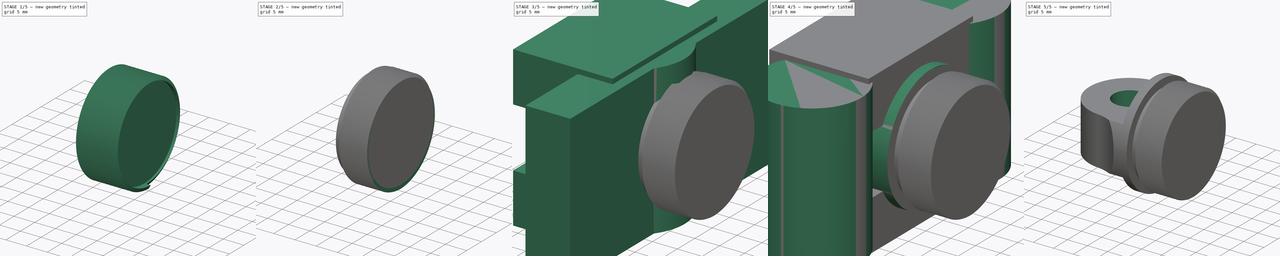
[diagram: build sequence overview — one tinted view per stage of 5, left to right]
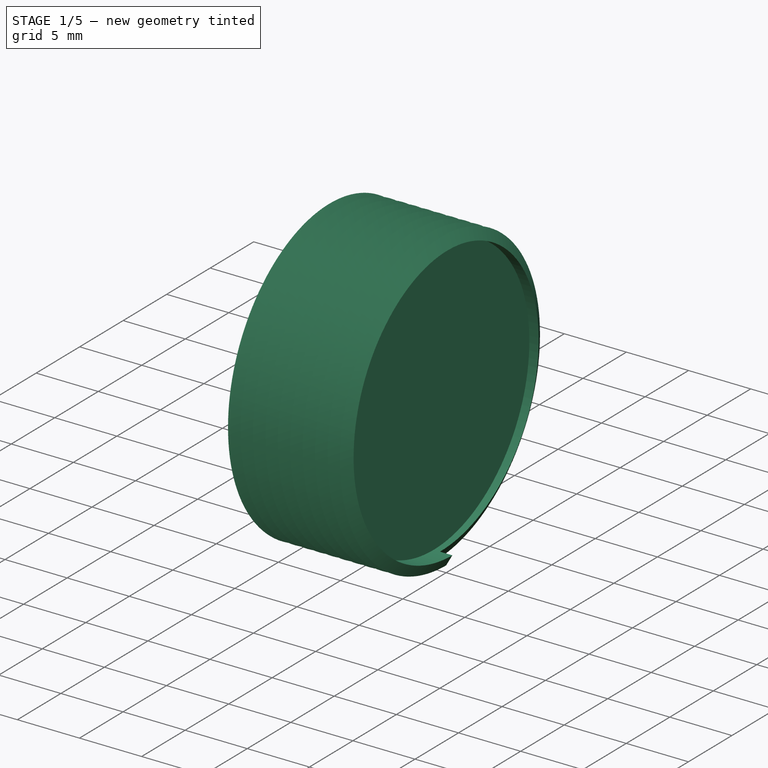
[diagram: stage 1 of 5 — iso view after this stage's code; geometry added in this stage tinted green]
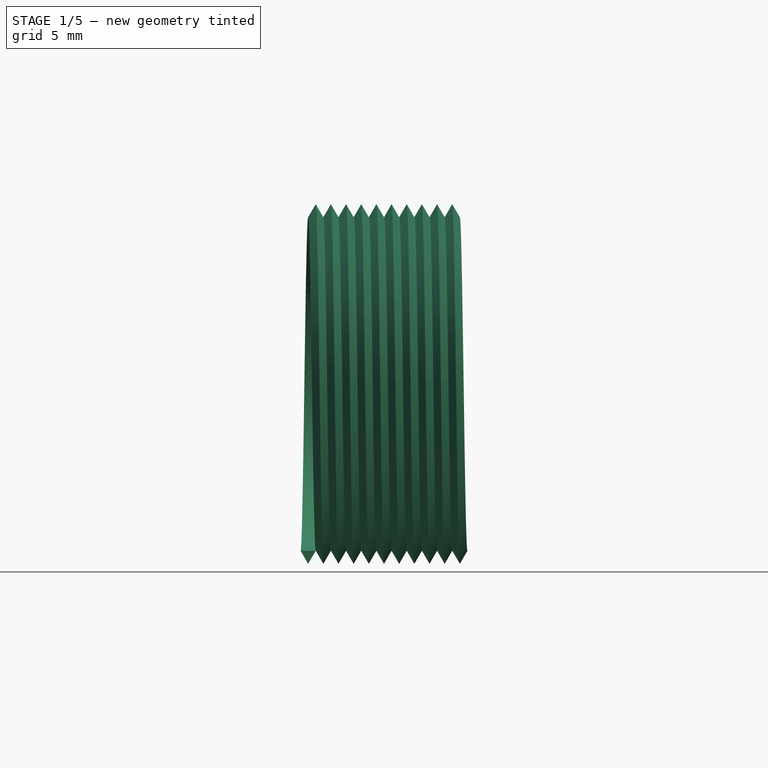
[diagram: stage 1 of 5 — front view after this stage's code; geometry added in this stage tinted green]
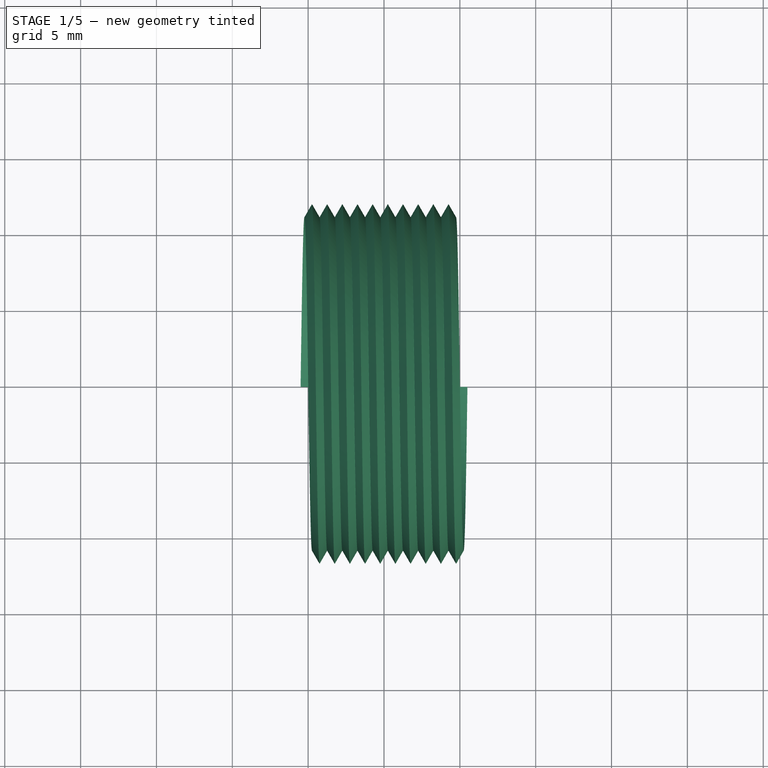
[diagram: stage 1 of 5 — top view after this stage's code; geometry added in this stage tinted green]
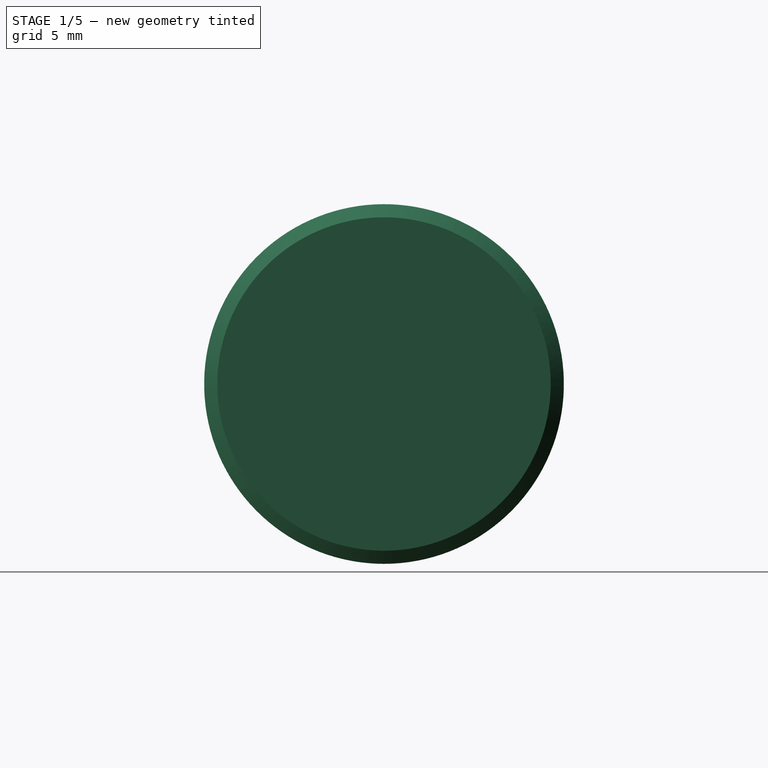
[diagram: stage 1 of 5 — right view after this stage's code; geometry added in this stage tinted green]
FCSTD DOCUMENT  (FreeCAD 0.17R13541 (Git))
Label: ERG-T-03-BC-01
License: All rights reserved
LicenseURL: http://en.wikipedia.org/wiki/All_rights_reserved
objects: Drawing::FeatureViewPython×20, Part::Cylinder×11, Part::MultiFuse×6, Part::Cut×6, Part::Box×3, Drawing::FeatureViewPart×2, Sketcher::SketchObject×1, Part::Helix×1, Part::Sweep×1, Part::MultiCommon×1, Drawing::FeaturePage×1
note: 30 computed .brp shape members not serialized (recipe doc carries the construction recipe); baked Part::Feature solids carry a one-line shape summary decoded from their .brp

FEATURE [Part::Helix] Helix013
  Angle = 0
  AttacherType = Attacher::AttachEngine3D
  Height = 10
  LocalCoord = 0
  Pitch = 1
  Placement = pos=(157,0,0) rot=(0,1,0;1.5708rad)
  Radius = 9.5
  Style = 1
FEATURE [Part::Sweep] Sweep013
  Frenet = true
  Placement = pos=(-156.5,0,0) rot=(0,0,1;0rad)
  Sections = -> [Sketch019]
  Solid = true
  Spine = -> Helix013
  Transition = 1
FEATURE [Part::Cylinder] Cylinder
  Angle = 360
  AttacherType = Attacher::AttachEngine3D
  Height = 8
  Placement = pos=(1,0,0) rot=(0,1,0;1.5708rad)
  Radius = 11
FEATURE [Part::Cylinder] Cylinder039  label="Cylinder042"
  Angle = 360
  AttacherType = Attacher::AttachEngine3D
  Height = 1.5
  Placement = pos=(1,0,0) rot=(0,1,0;1.5708rad)
  Radius = 10.5
FEATURE [Part::Cylinder] Cylinder040  label="Cylinder043"
  Angle = 360
  AttacherType = Attacher::AttachEngine3D
  Height = 1.5
  Placement = pos=(1,0,0) rot=(0,1,0;1.5708rad)
  Radius = 13
FEATURE [Part::Cut] Cut020
  Base = -> Cylinder040
  Tool = -> Cylinder039
FEATURE [Part::Cut] Cut023
  Base = -> Cylinder
  Tool = -> Cut020
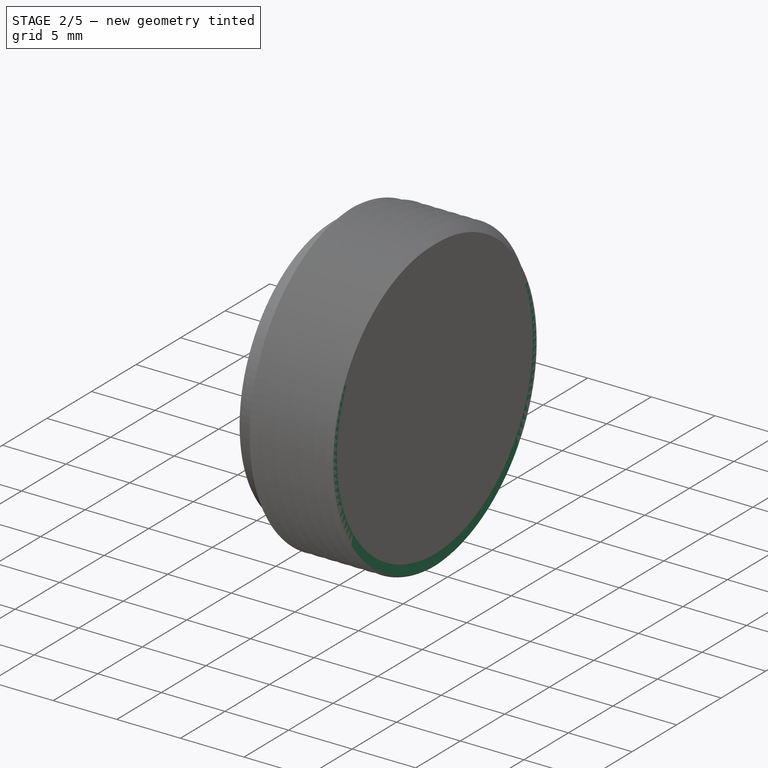
[diagram: stage 2 of 5 — iso view after this stage's code; geometry added in this stage tinted green]
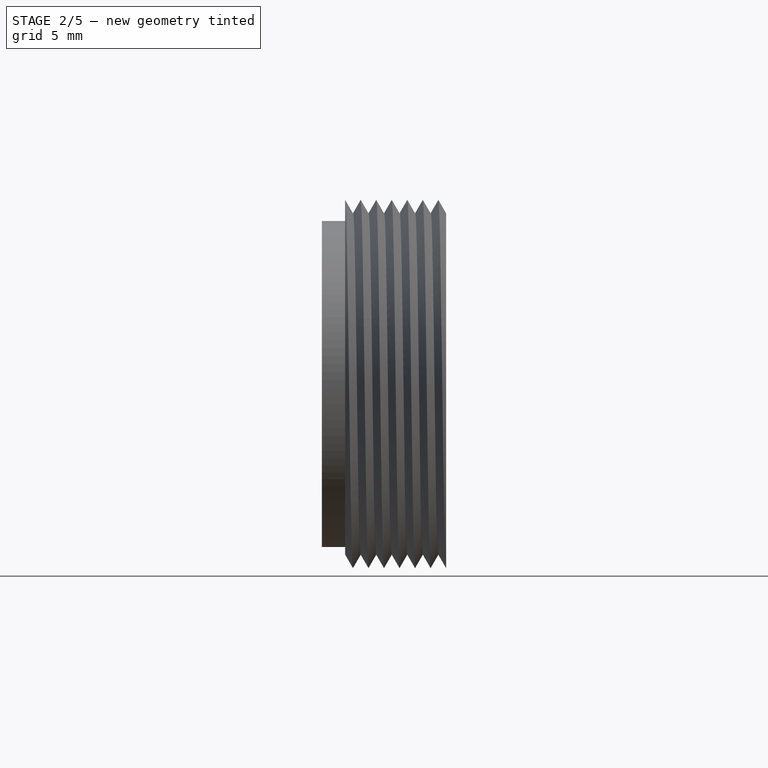
[diagram: stage 2 of 5 — front view after this stage's code; geometry added in this stage tinted green]
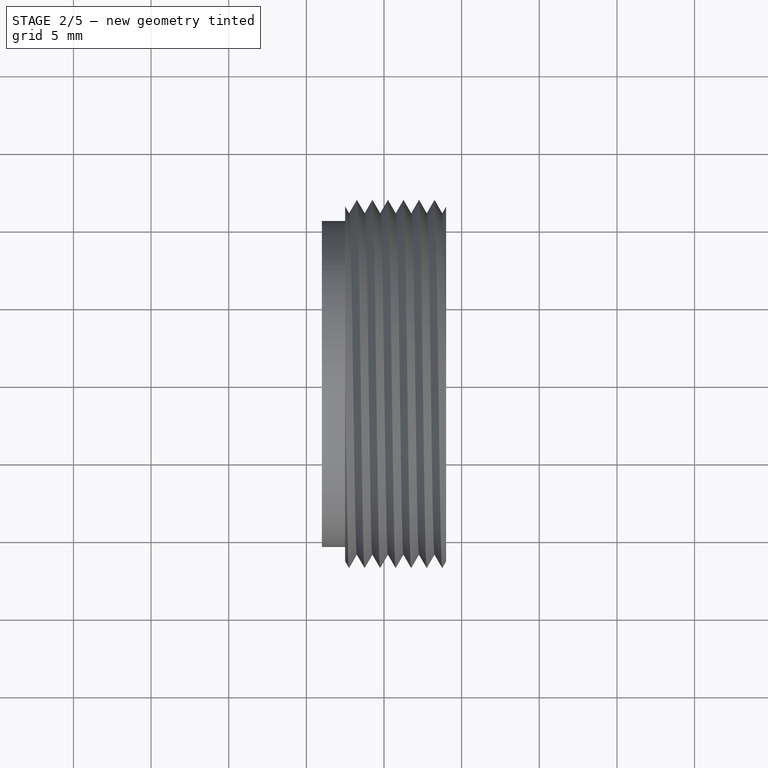
[diagram: stage 2 of 5 — top view after this stage's code; geometry added in this stage tinted green]
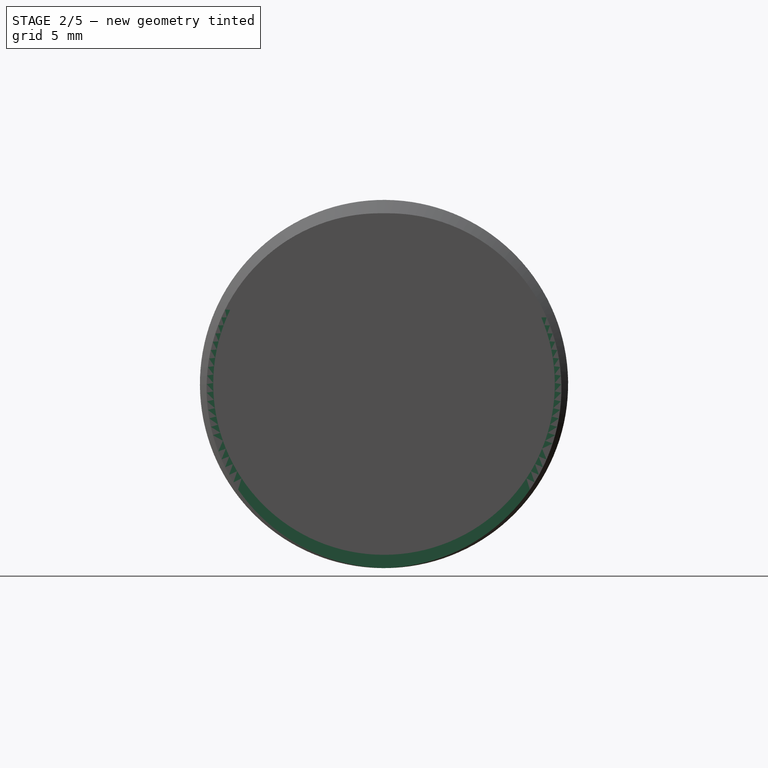
[diagram: stage 2 of 5 — right view after this stage's code; geometry added in this stage tinted green]
FEATURE [Sketcher::SketchObject] Sketch019  label="T018"
  Placement = pos=(156.5,0,-11.77) rot=(1,0,0;1.5708rad)
  sketch-geometry (3):
    g0: LineSegment StartX=-0.5 StartY=0.78015 StartZ=0 EndX=0.5 EndY=0.78015 EndZ=0
    g1: LineSegment StartX=-0.5 StartY=0.78015 StartZ=0 EndX=0 EndY=-0.0858752 EndZ=0
    g2: LineSegment StartX=0 StartY=-0.0858752 StartZ=0 EndX=0.5 EndY=0.78015 EndZ=0
  constraints (8):
    c: Horizontal(g0)
    c: DistanceX(g0,g0) = 1
    c: Coincident(g1,g0)
    c: Coincident(g2,g1)
    c: Coincident(g2,g0)
    c: Angle(g1,g0) = 1.0472
    c: Angle(g0,g2) = 1.0472
    c: Symmetric(g0,g0,g-2)
FEATURE [Part::Cylinder] Cylinder031  label="Cylinder034"
  Angle = 360
  AttacherType = Attacher::AttachEngine3D
  Height = 20
  Placement = pos=(9,0,0) rot=(0,1,0;1.5708rad)
  Radius = 13
FEATURE [Part::Cylinder] Cylinder032  label="Cylinder035"
  Angle = 360
  AttacherType = Attacher::AttachEngine3D
  Height = 3
  Placement = pos=(-0.5,0,0) rot=(0,1,0;1.5708rad)
  Radius = 13
FEATURE [Part::MultiFuse] Fusion008
  Shapes = -> [Cylinder031,Cylinder032]
FEATURE [Part::Cut] Cut022  label="thread"
  Base = -> Sweep013
  Tool = -> Fusion008
FEATURE [Part::MultiFuse] Fusion  label="body"
  Shapes = -> [Cut023,Cut022]
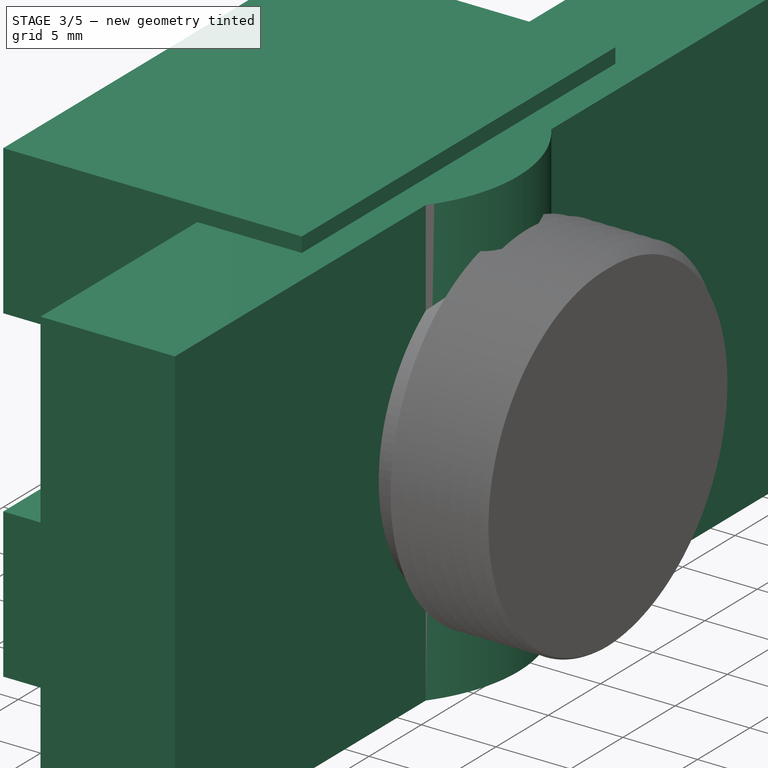
[diagram: stage 3 of 5 — iso view after this stage's code; geometry added in this stage tinted green]
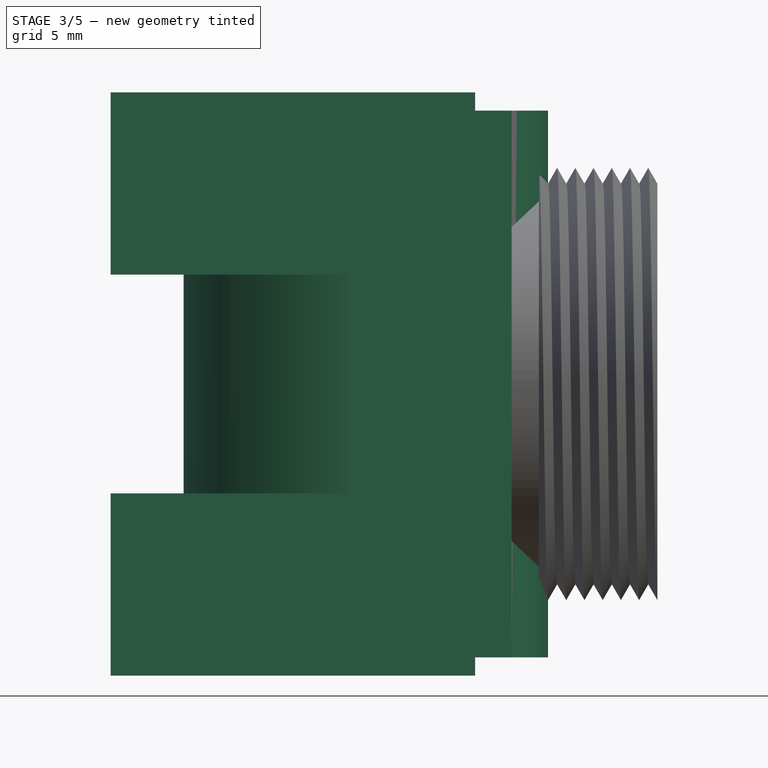
[diagram: stage 3 of 5 — front view after this stage's code; geometry added in this stage tinted green]
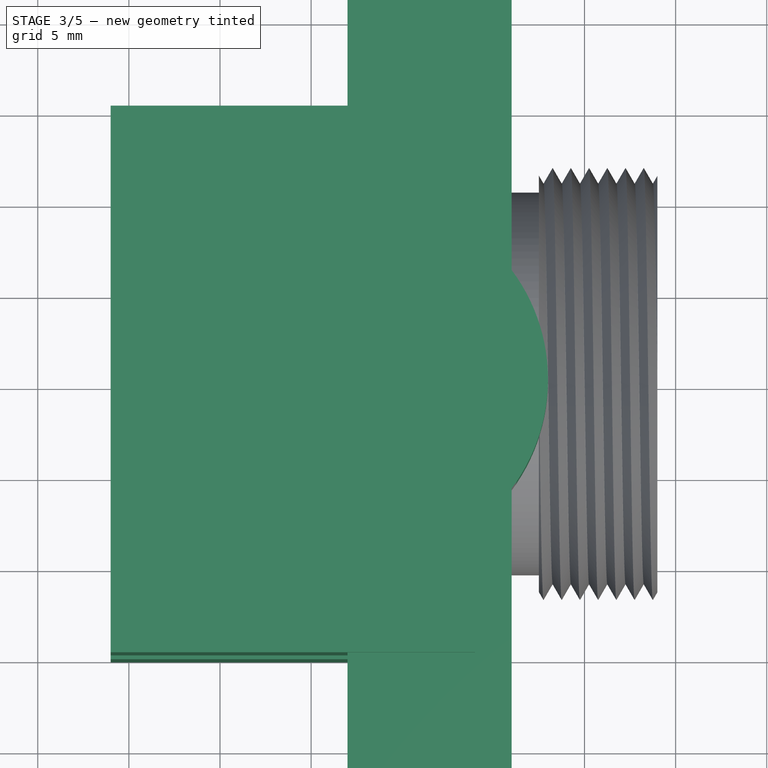
[diagram: stage 3 of 5 — top view after this stage's code; geometry added in this stage tinted green]
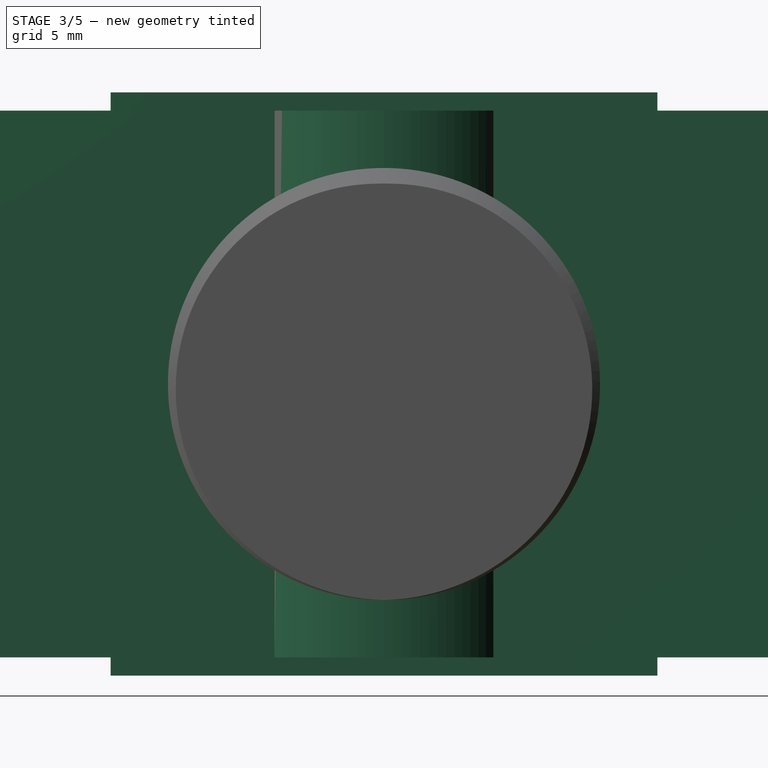
[diagram: stage 3 of 5 — right view after this stage's code; geometry added in this stage tinted green]
FEATURE [Part::Cylinder] Cylinder035  label="Cylinder038"
  Angle = 360
  AttacherType = Attacher::AttachEngine3D
  Height = 30
  Placement = pos=(-7,0,-15) rot=(0,0,1;0rad)
  Radius = 10
FEATURE [Part::Box] Box  label="Cube"
  AttacherType = Attacher::AttachEngine3D
  Height = 30
  Length = 9
  Placement = pos=(-8,-30,-15) rot=(0,0,1;0rad)
  Width = 60
FEATURE [Part::MultiFuse] Fusion011
  Shapes = -> [Cylinder035,Box]
FEATURE [Part::Box] Box001  label="Cube001"
  AttacherType = Attacher::AttachEngine3D
  Height = 10
  Length = 20
  Placement = pos=(-21,-15,6) rot=(0,0,1;0rad)
  Width = 30
FEATURE [Part::Box] Box002  label="Cube002"
  AttacherType = Attacher::AttachEngine3D
  Height = 10
  Length = 20
  Placement = pos=(-21,-15,-16) rot=(0,0,1;0rad)
  Width = 30
FEATURE [Part::MultiFuse] Fusion014
  Shapes = -> [Box002,Box001]
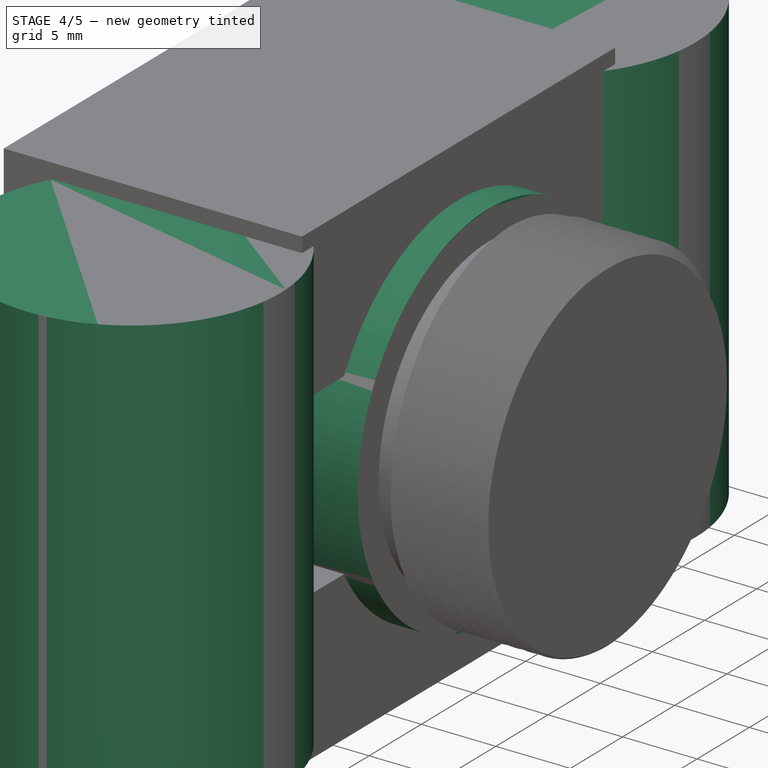
[diagram: stage 4 of 5 — iso view after this stage's code; geometry added in this stage tinted green]
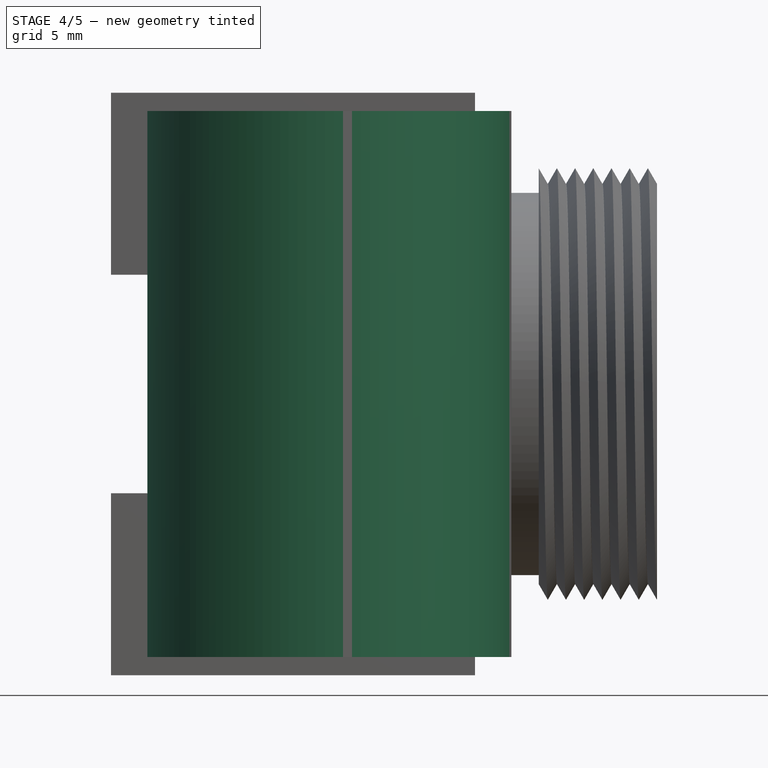
[diagram: stage 4 of 5 — front view after this stage's code; geometry added in this stage tinted green]
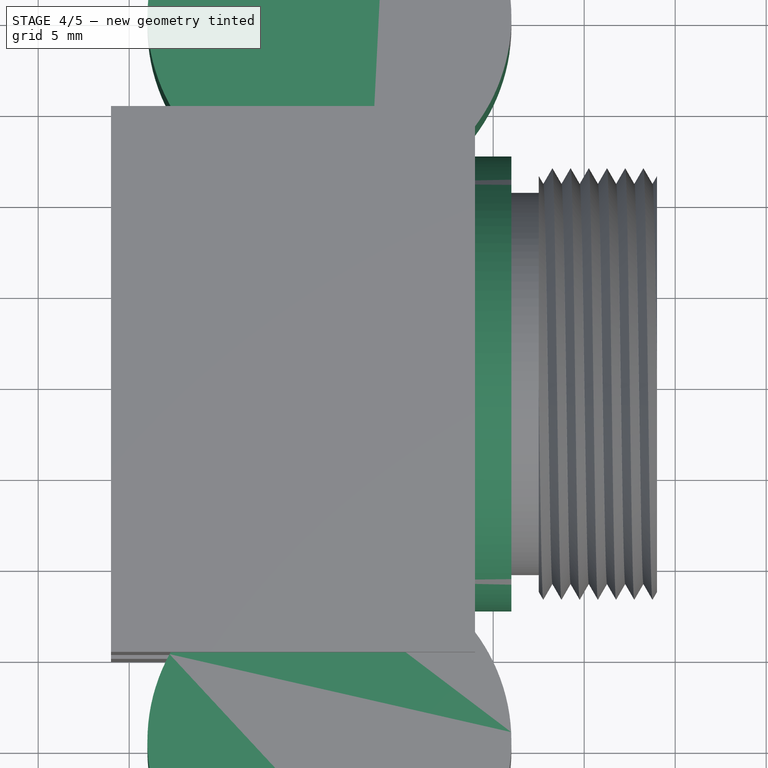
[diagram: stage 4 of 5 — top view after this stage's code; geometry added in this stage tinted green]
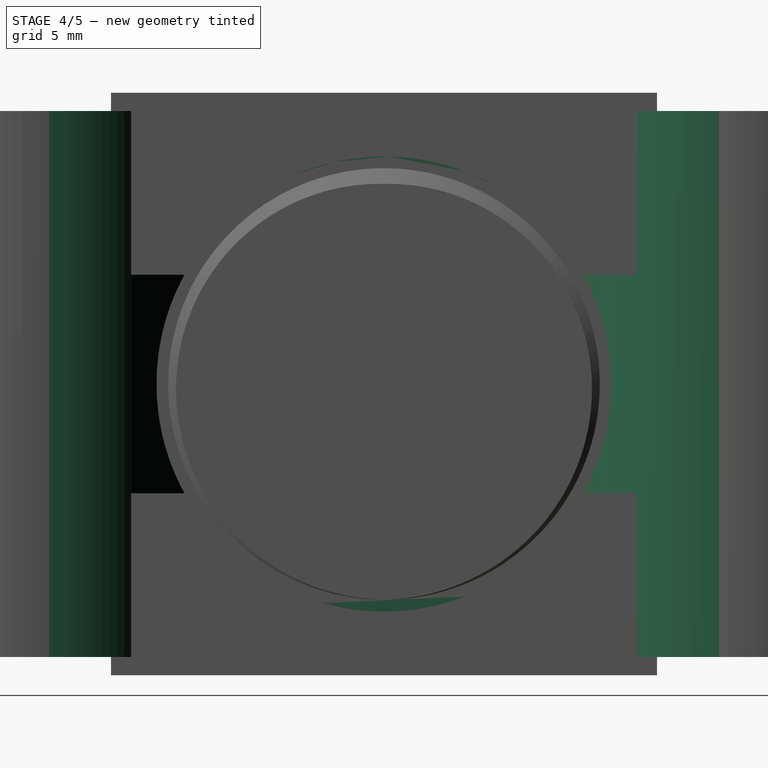
[diagram: stage 4 of 5 — right view after this stage's code; geometry added in this stage tinted green]
FEATURE [Part::Cylinder] Cylinder034  label="Cylinder037"
  Angle = 360
  AttacherType = Attacher::AttachEngine3D
  Height = 20
  Placement = pos=(-19,0,0) rot=(0,1,0;1.5708rad)
  Radius = 12.5
FEATURE [Part::Cylinder] Cylinder037  label="Cylinder040"
  Angle = 360
  AttacherType = Attacher::AttachEngine3D
  Height = 30
  Placement = pos=(-9,19.89,-15) rot=(0,0,1;0rad)
  Radius = 10
FEATURE [Part::Cylinder] Cylinder038  label="Cylinder041"
  Angle = 360
  AttacherType = Attacher::AttachEngine3D
  Height = 30
  Placement = pos=(-9,-19.89,-15) rot=(0,0,1;0rad)
  Radius = 10
FEATURE [Part::MultiFuse] Fusion010
  Shapes = -> [Cylinder037,Cylinder038]
FEATURE [Part::MultiCommon] Common
  Shapes = -> [Fusion011,Cylinder034]
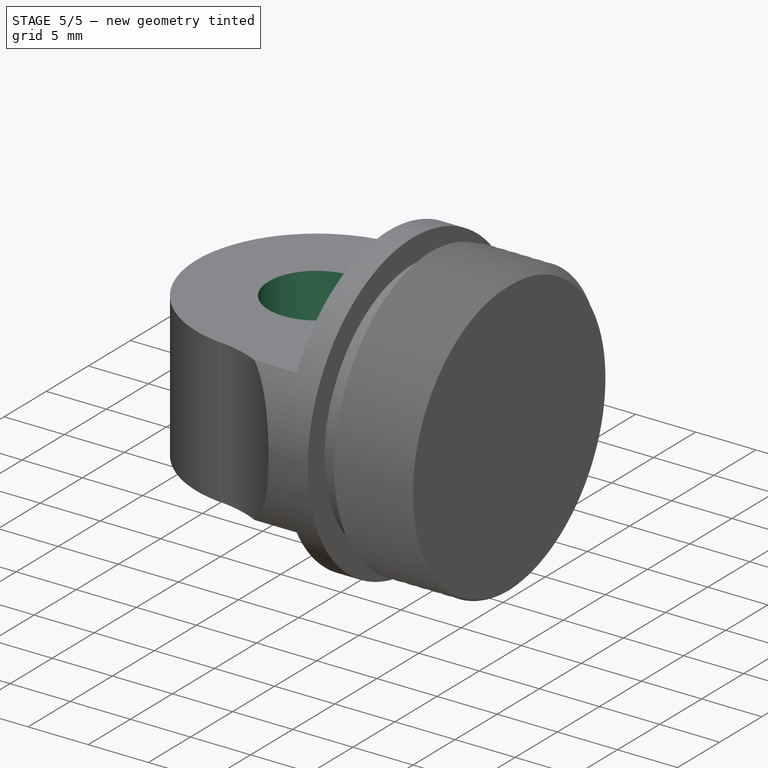
[diagram: stage 5 of 5 — iso view after this stage's code; geometry added in this stage tinted green]
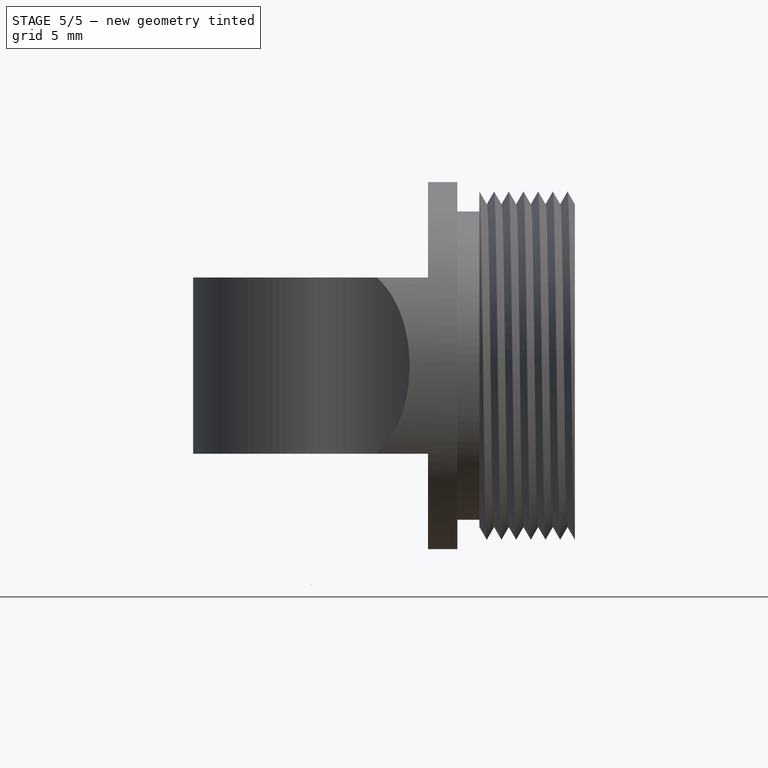
[diagram: stage 5 of 5 — front view after this stage's code; geometry added in this stage tinted green]
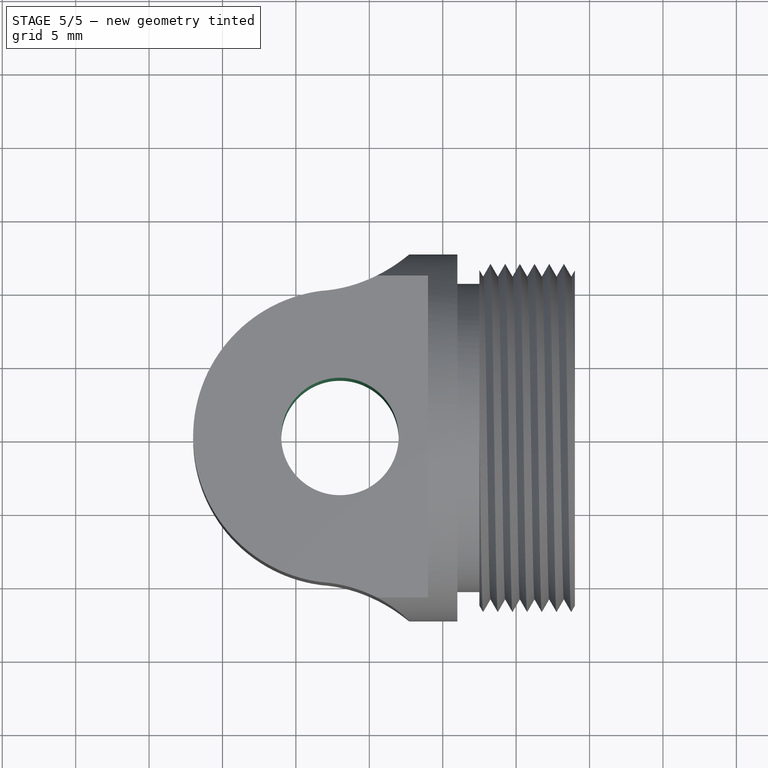
[diagram: stage 5 of 5 — top view after this stage's code; geometry added in this stage tinted green]
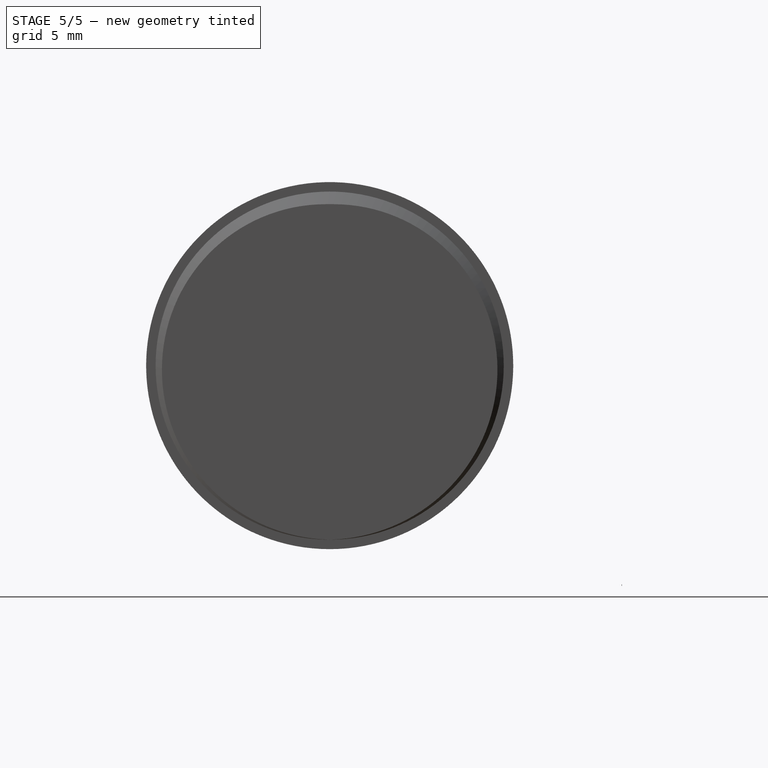
[diagram: stage 5 of 5 — right view after this stage's code; geometry added in this stage tinted green]
FEATURE [Part::Cylinder] Cylinder036  label="Cylinder039"
  Angle = 360
  AttacherType = Attacher::AttachEngine3D
  Height = 30
  Placement = pos=(-7,0,-15) rot=(0,0,1;0rad)
  Radius = 4
FEATURE [Part::Cut] Cut
  Base = -> Common
  Tool = -> Fusion010
FEATURE [Part::Cut] Cut019
  Base = -> Cut
  Tool = -> Cylinder036
FEATURE [Part::Cylinder] Cylinder041  label="center"
  Angle = 360
  AttacherType = Attacher::AttachEngine3D
  Height = 0.1
  Placement = pos=(-9,19.89,-15) rot=(0,0,1;0rad)
  Radius = 0.01
FEATURE [Part::Cut] Cut021  label="HEAD"
  Base = -> Cut019
  Tool = -> Fusion014
FEATURE [Part::MultiFuse] Fusion015  label="CAP"
  Shapes = -> [Cut021,Fusion]
FEATURE [Drawing::FeatureViewPart] Ortho  label="Ortho_0_0"
  Direction = (0,0,1)
  HiddenWidth = 0.15
  LineWidth = 0.35
  Rotation = 90
  Scale = 3
  ShowHiddenLines = false
  ShowSmoothLines = false
  Source = -> Fusion015
  Tolerance = 0.05
  ViewResult = <blob: 13975 chars omitted>
  Visible = false
  X = 85.6667
  Y = 93.5
FEATURE [Drawing::FeatureViewPart] Ortho001  label="Ortho_1_0"
  Direction = (0,-1,0)
  HiddenWidth = 0.15
  LineWidth = 0.35
  Rotation = 180
  Scale = 3
  ShowHiddenLines = true
  ShowSmoothLines = false
  Source = -> Fusion015
  Tolerance = 0.05
  ViewResult = <blob: 29550 chars omitted>
  Visible = false
  X = 211.333
  Y = 93.5
FEATURE [Drawing::FeatureViewPython] dim001  # drawing view (typed FeaturePython)
  Rotation = 0
  ViewResult = <g> \n  <line x1="123.166700" y1="96.500000" x2="123.166700" y2="157.677277" style="stroke:rgb(255,0,0);stroke-width:0.10" />\n<line x1="48.166700" y1="96.500000" x2="48.166700" y2="157.677277" style="stroke:rgb(255,0,0);stroke-width:0.10" />\n<line x1="123.166700" y1="156.677277" x2="48.166700" y2="156.677277" style="stroke:rgb(255,0,0);stroke-width:0.10" /> \n  <polygon points="48.166700,156.677277 50.166700,157.177277 50.666700,156.677277 50.166700,156.177277" style="fill:rgb(255,0,0);stroke:rgb(255,0,0);stroke-width:0" /><polygon points="123.166700,156.677277 121.166700,156.177277 120.666700,156.677277 121.166700,157.177277" style="fill:rgb(255,0,0);stroke:rgb(255,0,0);stroke-width:0" /> \n  <text x="85.666700" y="154.677277" font-family="inherit" font-size="3.6" fill="rgb(0,0,0)" text-anchor="middle" transform="rotate(-0.000000 85.666700,154.677277)" >25</text> </g>
  Visible = false
  X = 0
  Y = 0
  arrowL1 = 2
  arrowL2 = 0.5
  arrowW = 1
  arrow_scheme = 0
  autoPlaceOffset = 2
  autoPlaceText = true
  click1_x = 36.7429
  click1_y = 156.677
  click2_x = 36.7429
  click2_y = 156.677
  comma_decimal_place = false
  dimension_line_overshoot = 1
  gap_datum_points = 0
  halfDimension_linear = false
  lineColor = rgb(255,0,0)
  strokeWidth = 0.1
  textFormat_linear = %(value)3.3f
  textRenderer_color = rgb(0,0,0)
  textRenderer_family = inherit
  textRenderer_size = 3.6
  unit_custom_scale = 1.2
  unit_scheme = 0
FEATURE [Drawing::FeatureViewPython] dim003  # drawing view (typed FeaturePython)
  Rotation = 0
  ViewResult = <g> \n  <line x1="118.564400" y1="90.500000" x2="136.572997" y2="90.500000" style="stroke:rgb(255,0,0);stroke-width:0.10" />\n<line x1="123.166700" y1="96.500000" x2="136.572997" y2="96.500000" style="stroke:rgb(255,0,0);stroke-width:0.10" />\n<line x1="135.572997" y1="90.500000" x2="135.572997" y2="96.500000" style="stroke:rgb(255,0,0);stroke-width:0.10" /> \n  <polygon points="135.572997,96.500000 135.072997,98.500000 135.572997,99.000000 136.072997,98.500000" style="fill:rgb(255,0,0);stroke:rgb(255,0,0);stroke-width:0" /><polygon points="135.572997,90.500000 136.072997,88.500000 135.572997,88.000000 135.072997,88.500000" style="fill:rgb(255,0,0);stroke:rgb(255,0,0);stroke-width:0" /> \n  <text x="133.572997" y="93.500000" font-family="inherit" font-size="3.6" fill="rgb(0,0,0)" text-anchor="middle" transform="rotate(-90.000000 133.572997,93.500000)" >2</text> </g>
  Visible = false
  X = 0
  Y = 0
  arrowL1 = 2
  arrowL2 = 0.5
  arrowW = 1
  arrow_scheme = 0
  autoPlaceOffset = 2
  autoPlaceText = true
  click1_x = 135.573
  click1_y = 96.0103
  click2_x = 135.573
  click2_y = 96.0103
  comma_decimal_place = false
  dimension_line_overshoot = 1
  gap_datum_points = 0
  halfDimension_linear = false
  lineColor = rgb(255,0,0)
  strokeWidth = 0.1
  textFormat_linear = %(value)3.3f
  textRenderer_color = rgb(0,0,0)
  textRenderer_family = inherit
  textRenderer_size = 3.6
  unit_custom_scale = 1.2
  unit_scheme = 0
FEATURE [Drawing::FeatureViewPython] dim005  # drawing view (typed FeaturePython)
  Rotation = 0
  ViewResult = <g> \n  <line x1="193.333000" y1="42.500000" x2="193.333000" y2="17.872140" style="stroke:rgb(255,0,0);stroke-width:0.10" />\n<line x1="229.333000" y1="42.500000" x2="229.333000" y2="17.872140" style="stroke:rgb(255,0,0);stroke-width:0.10" />\n<line x1="193.333000" y1="18.872140" x2="229.333000" y2="18.872140" style="stroke:rgb(255,0,0);stroke-width:0.10" /> \n  <polygon points="229.333000,18.872140 227.333000,18.372140 226.833000,18.872140 227.333000,19.372140" style="fill:rgb(255,0,0);stroke:rgb(255,0,0);stroke-width:0" /><polygon points="193.333000,18.872140 195.333000,19.372140 195.833000,18.872140 195.333000,18.372140" style="fill:rgb(255,0,0);stroke:rgb(255,0,0);stroke-width:0" /> \n  <text x="211.333000" y="16.872140" font-family="inherit" font-size="3.6" fill="rgb(0,0,0)" text-anchor="middle" transform="rotate(0.000000 211.333000,16.872140)" >12</text> </g>
  Visible = false
  X = 0
  Y = 0
  arrowL1 = 2
  arrowL2 = 0.5
  arrowW = 1
  arrow_scheme = 0
  autoPlaceOffset = 2
  autoPlaceText = true
  click1_x = 214.719
  click1_y = 18.8721
  click2_x = 214.719
  click2_y = 18.8721
  comma_decimal_place = false
  dimension_line_overshoot = 1
  gap_datum_points = 0
  halfDimension_linear = false
  lineColor = rgb(255,0,0)
  strokeWidth = 0.1
  textFormat_linear = %(value)3.3f
  textRenderer_color = rgb(0,0,0)
  textRenderer_family = inherit
  textRenderer_size = 3.6
  unit_custom_scale = 1.2
  unit_scheme = 0
FEATURE [Drawing::FeatureViewPython] dim006  # drawing view (typed FeaturePython)
  Rotation = 0
  ViewResult = <g> \n  <line x1="229.333000" y1="42.500000" x2="279.047769" y2="42.500000" style="stroke:rgb(255,0,0);stroke-width:0.10" />\n<line x1="235.964080" y1="120.500000" x2="279.047769" y2="120.500000" style="stroke:rgb(255,0,0);stroke-width:0.10" />\n<line x1="278.047769" y1="42.500000" x2="278.047769" y2="120.500000" style="stroke:rgb(255,0,0);stroke-width:0.10" /> \n  <polygon points="278.047769,120.500000 278.547769,118.500000 278.047769,118.000000 277.547769,118.500000" style="fill:rgb(255,0,0);stroke:rgb(255,0,0);stroke-width:0" /><polygon points="278.047769,42.500000 277.547769,44.500000 278.047769,45.000000 278.547769,44.500000" style="fill:rgb(255,0,0);stroke:rgb(255,0,0);stroke-width:0" /> \n  <text x="276.047769" y="81.500000" font-family="inherit" font-size="3.6" fill="rgb(0,0,0)" text-anchor="middle" transform="rotate(-90.000000 276.047769,81.500000)" >26</text> </g>
  Visible = false
  X = 0
  Y = 0
  arrowL1 = 2
  arrowL2 = 0.5
  arrowW = 1
  arrow_scheme = 0
  autoPlaceOffset = 2
  autoPlaceText = true
  click1_x = 278.048
  click1_y = 116.61
  click2_x = 278.048
  click2_y = 116.61
  comma_decimal_place = false
  dimension_line_overshoot = 1
  gap_datum_points = 0
  halfDimension_linear = false
  lineColor = rgb(255,0,0)
  strokeWidth = 0.1
  textFormat_linear = %(value)3.3f
  textRenderer_color = rgb(0,0,0)
  textRenderer_family = inherit
  textRenderer_size = 3.6
  unit_custom_scale = 1.2
  unit_scheme = 0
FEATURE [Drawing::FeatureViewPython] dim007  # drawing view (typed FeaturePython)
  Rotation = 0
  ViewResult = <g> \n  <line x1="248.449900" y1="96.500000" x2="269.318182" y2="96.500000" style="stroke:rgb(255,0,0);stroke-width:0.10" />\n<line x1="244.310500" y1="120.500000" x2="269.318182" y2="120.500000" style="stroke:rgb(255,0,0);stroke-width:0.10" />\n<line x1="268.318182" y1="96.500000" x2="268.318182" y2="120.500000" style="stroke:rgb(255,0,0);stroke-width:0.10" /> \n  <polygon points="268.318182,120.500000 268.818182,118.500000 268.318182,118.000000 267.818182,118.500000" style="fill:rgb(255,0,0);stroke:rgb(255,0,0);stroke-width:0" /><polygon points="268.318182,96.500000 267.818182,98.500000 268.318182,99.000000 268.818182,98.500000" style="fill:rgb(255,0,0);stroke:rgb(255,0,0);stroke-width:0" /> \n  <text x="266.318182" y="108.500000" font-family="inherit" font-size="3.6" fill="rgb(0,0,0)" text-anchor="middle" transform="rotate(-90.000000 266.318182,108.500000)" >8</text> </g>
  Visible = false
  X = 0
  Y = 0
  arrowL1 = 2
  arrowL2 = 0.5
  arrowW = 1
  arrow_scheme = 0
  autoPlaceOffset = 2
  autoPlaceText = true
  click1_x = 268.318
  click1_y = 108.804
  click2_x = 268.318
  click2_y = 108.804
  comma_decimal_place = false
  dimension_line_overshoot = 1
  gap_datum_points = 0
  halfDimension_linear = false
  lineColor = rgb(255,0,0)
  strokeWidth = 0.1
  textFormat_linear = %(value)3.3f
  textRenderer_color = rgb(0,0,0)
  textRenderer_family = inherit
  textRenderer_size = 3.6
  unit_custom_scale = 1.2
  unit_scheme = 0
FEATURE [Drawing::FeatureViewPython] dim008  # drawing view (typed FeaturePython)
  Rotation = 0
  ViewResult = <g> \n  <line x1="248.449900" y1="96.500000" x2="269.318182" y2="96.500000" style="stroke:rgb(255,0,0);stroke-width:0.10" />\n<line x1="229.333000" y1="42.500000" x2="269.318182" y2="42.500000" style="stroke:rgb(255,0,0);stroke-width:0.10" />\n<line x1="268.318182" y1="96.500000" x2="268.318182" y2="42.500000" style="stroke:rgb(255,0,0);stroke-width:0.10" /> \n  <polygon points="268.318182,42.500000 267.818182,44.500000 268.318182,45.000000 268.818182,44.500000" style="fill:rgb(255,0,0);stroke:rgb(255,0,0);stroke-width:0" /><polygon points="268.318182,96.500000 268.818182,94.500000 268.318182,94.000000 267.818182,94.500000" style="fill:rgb(255,0,0);stroke:rgb(255,0,0);stroke-width:0" /> \n  <text x="266.318182" y="69.500000" font-family="inherit" font-size="3.6" fill="rgb(0,0,0)" text-anchor="middle" transform="rotate(-90.000000 266.318182,69.500000)" >18</text> </g>
  Visible = false
  X = 0
  Y = 0
  arrowL1 = 2
  arrowL2 = 0.5
  arrowW = 1
  arrow_scheme = 0
  autoPlaceOffset = 2
  autoPlaceText = true
  click1_x = 268.318
  click1_y = 69.6472
  click2_x = 268.318
  click2_y = 69.6472
  comma_decimal_place = false
  dimension_line_overshoot = 1
  gap_datum_points = 0
  halfDimension_linear = false
  lineColor = rgb(255,0,0)
  strokeWidth = 0.1
  textFormat_linear = %(value)3.3f
  textRenderer_color = rgb(0,0,0)
  textRenderer_family = inherit
  textRenderer_size = 3.6
  unit_custom_scale = 1.2
  unit_scheme = 0
FEATURE [Drawing::FeatureViewPython] dim009  # drawing view (typed FeaturePython)
  Rotation = 0
  ViewResult = <g> \n  <line x1="193.333000" y1="90.500000" x2="193.333000" y2="17.985770" style="stroke:rgb(255,0,0);stroke-width:0.10" />\n<line x1="173.833000" y1="90.500000" x2="173.833000" y2="17.985770" style="stroke:rgb(255,0,0);stroke-width:0.10" />\n<line x1="193.333000" y1="18.985770" x2="173.833000" y2="18.985770" style="stroke:rgb(255,0,0);stroke-width:0.10" /> \n  <polygon points="173.833000,18.985770 175.833000,19.485770 176.333000,18.985770 175.833000,18.485770" style="fill:rgb(255,0,0);stroke:rgb(255,0,0);stroke-width:0" /><polygon points="193.333000,18.985770 191.333000,18.485770 190.833000,18.985770 191.333000,19.485770" style="fill:rgb(255,0,0);stroke:rgb(255,0,0);stroke-width:0" /> \n  <text x="183.583000" y="16.985770" font-family="inherit" font-size="3.6" fill="rgb(0,0,0)" text-anchor="middle" transform="rotate(-0.000000 183.583000,16.985770)" >6.5</text> </g>
  Visible = false
  X = 0
  Y = 0
  arrowL1 = 2
  arrowL2 = 0.5
  arrowW = 1
  arrow_scheme = 0
  autoPlaceOffset = 2
  autoPlaceText = true
  click1_x = 154.839
  click1_y = 18.9858
  click2_x = 154.839
  click2_y = 18.9858
  comma_decimal_place = false
  dimension_line_overshoot = 1
  gap_datum_points = 0
  halfDimension_linear = false
  lineColor = rgb(255,0,0)
  strokeWidth = 0.1
  textFormat_linear = %(value)3.3f
  textRenderer_color = rgb(0,0,0)
  textRenderer_family = inherit
  textRenderer_size = 3.6
  unit_custom_scale = 1.2
  unit_scheme = 0
FEATURE [Drawing::FeatureViewPython] dim010  # drawing view (typed FeaturePython)
  Rotation = 0
  ViewResult = <g> \n  <line x1="248.833000" y1="90.500000" x2="248.833000" y2="17.888456" style="stroke:rgb(255,0,0);stroke-width:0.10" />\n<line x1="229.333000" y1="90.500000" x2="229.333000" y2="17.888456" style="stroke:rgb(255,0,0);stroke-width:0.10" />\n<line x1="248.833000" y1="18.888456" x2="229.333000" y2="18.888456" style="stroke:rgb(255,0,0);stroke-width:0.10" /> \n  <polygon points="229.333000,18.888456 231.333000,19.388456 231.833000,18.888456 231.333000,18.388456" style="fill:rgb(255,0,0);stroke:rgb(255,0,0);stroke-width:0" /><polygon points="248.833000,18.888456 246.833000,18.388456 246.333000,18.888456 246.833000,19.388456" style="fill:rgb(255,0,0);stroke:rgb(255,0,0);stroke-width:0" /> \n  <text x="239.083000" y="16.888456" font-family="inherit" font-size="3.6" fill="rgb(0,0,0)" text-anchor="middle" transform="rotate(0.000000 239.083000,16.888456)" >6.5</text> </g>
  Visible = false
  X = 0
  Y = 0
  arrowL1 = 2
  arrowL2 = 0.5
  arrowW = 1
  arrow_scheme = 0
  autoPlaceOffset = 2
  autoPlaceText = true
  click1_x = 239.319
  click1_y = 18.8885
  click2_x = 239.319
  click2_y = 18.8885
  comma_decimal_place = false
  dimension_line_overshoot = 1
  gap_datum_points = 0
  halfDimension_linear = false
  lineColor = rgb(255,0,0)
  strokeWidth = 0.1
  textFormat_linear = %(value)3.3f
  textRenderer_color = rgb(0,0,0)
  textRenderer_family = inherit
  textRenderer_size = 3.6
  unit_custom_scale = 1.2
  unit_scheme = 0
FEATURE [Drawing::FeatureViewPython] dia001  # drawing view (typed FeaturePython)
  Rotation = 0
  ViewResult = <g>  <circle cx ="85.666700" cy ="72.500000" r="0.250000" stroke="none" fill="rgb(255,0,0)" /> \n<line x1="49.869288" y1="50.375576" x2="95.874458" y2="78.808857" style="stroke:rgb(255,0,0);stroke-width:0.10" />\n<polygon points="75.458942,66.191143 76.897366,67.667942 77.585558,67.505488 77.423104,66.817296" style="fill:rgb(255,0,0);stroke:rgb(255,0,0);stroke-width:0" />\n<polygon points="95.874458,78.808857 94.436034,77.332058 93.747842,77.494512 93.910296,78.182704" style="fill:rgb(255,0,0);stroke:rgb(255,0,0);stroke-width:0" />\n<line x1="49.869288" y1="50.375576" x2="36.705821" y2="50.375576" style="stroke:rgb(255,0,0);stroke-width:0.10" />\n<text x="43.287555" y="48.375576" font-family="inherit" font-size="3.6" fill="rgb(0,0,0)" text-anchor="middle" transform="rotate(0.000000 43.287555,48.375576)" >Ø8</text> </g>
  Visible = false
  X = 0
  Y = 0
  arrowL1 = 2
  arrowL2 = 0.5
  arrowW = 1
  arrow_scheme = 0
  autoPlaceOffset = 2
  autoPlaceText = true
  centerPointDia = 0.5
  click1_x = 49.8693
  click1_y = 50.3756
  click2_x = 36.7058
  click2_y = 51.3881
  click3_x = 36.7058
  click3_y = 51.3881
  comma_decimal_place = false
  lineColor = rgb(255,0,0)
  strokeWidth = 0.1
  textFormat_circular = Ø%(value)3.3f
  textRenderer_color = rgb(0,0,0)
  textRenderer_family = inherit
  textRenderer_size = 3.6
  unit_custom_scale = 1.2
  unit_scheme = 0
FEATURE [Drawing::FeatureViewPython] dim011  # drawing view (typed FeaturePython)
  Rotation = 0
  ViewResult = <g> \n  <line x1="85.666700" y1="72.500000" x2="85.666700" y2="28.617801" style="stroke:rgb(255,0,0);stroke-width:0.10" />\n<line x1="145.336667" y1="66.499681" x2="145.336667" y2="28.617801" style="stroke:rgb(255,0,0);stroke-width:0.10" />\n<line x1="85.666700" y1="29.617801" x2="145.336667" y2="29.617801" style="stroke:rgb(255,0,0);stroke-width:0.10" /> \n  <polygon points="145.336667,29.617801 143.336667,29.117801 142.836667,29.617801 143.336667,30.117801" style="fill:rgb(255,0,0);stroke:rgb(255,0,0);stroke-width:0" /><polygon points="85.666700,29.617801 87.666700,30.117801 88.166700,29.617801 87.666700,29.117801" style="fill:rgb(255,0,0);stroke:rgb(255,0,0);stroke-width:0" /> \n  <text x="115.501683" y="27.617801" font-family="inherit" font-size="3.6" fill="rgb(0,0,0)" text-anchor="middle" transform="rotate(0.000000 115.501683,27.617801)" >19.9</text> </g>
  Visible = false
  X = 0
  Y = 0
  arrowL1 = 2
  arrowL2 = 0.5
  arrowW = 1
  arrow_scheme = 0
  autoPlaceOffset = 2
  autoPlaceText = true
  click1_x = 142.773
  click1_y = 29.6178
  click2_x = 142.773
  click2_y = 29.6178
  comma_decimal_place = false
  dimension_line_overshoot = 1
  gap_datum_points = 0
  halfDimension_linear = false
  lineColor = rgb(255,0,0)
  strokeWidth = 0.1
  textFormat_linear = %(value)3.1f
  textRenderer_color = rgb(0,0,0)
  textRenderer_family = inherit
  textRenderer_size = 3.6
  unit_custom_scale = 1.2
  unit_scheme = 0
FEATURE [Drawing::FeatureViewPython] dim012  # drawing view (typed FeaturePython)
  Rotation = 0
  ViewResult = <g> \n  <line x1="145.336667" y1="66.499681" x2="158.961604" y2="66.499681" style="stroke:rgb(255,0,0);stroke-width:0.10" />\n<line x1="118.564400" y1="90.500000" x2="158.961604" y2="90.500000" style="stroke:rgb(255,0,0);stroke-width:0.10" />\n<line x1="157.961604" y1="66.499681" x2="157.961604" y2="90.500000" style="stroke:rgb(255,0,0);stroke-width:0.10" /> \n  <polygon points="157.961604,90.500000 158.461604,88.500000 157.961604,88.000000 157.461604,88.500000" style="fill:rgb(255,0,0);stroke:rgb(255,0,0);stroke-width:0" /><polygon points="157.961604,66.499681 157.461604,68.499681 157.961604,68.999681 158.461604,68.499681" style="fill:rgb(255,0,0);stroke:rgb(255,0,0);stroke-width:0" /> \n  <text x="155.961604" y="78.499840" font-family="inherit" font-size="3.6" fill="rgb(0,0,0)" text-anchor="middle" transform="rotate(-90.000000 155.961604,78.499840)" >8</text> </g>
  Visible = false
  X = 0
  Y = 0
  arrowL1 = 2
  arrowL2 = 0.5
  arrowW = 1
  arrow_scheme = 0
  autoPlaceOffset = 2
  autoPlaceText = true
  click1_x = 157.962
  click1_y = 90.1191
  click2_x = 157.962
  click2_y = 90.1191
  comma_decimal_place = false
  dimension_line_overshoot = 1
  gap_datum_points = 0
  halfDimension_linear = false
  lineColor = rgb(255,0,0)
  strokeWidth = 0.1
  textFormat_linear = %(value)3.3f
  textRenderer_color = rgb(0,0,0)
  textRenderer_family = inherit
  textRenderer_size = 3.6
  unit_custom_scale = 1.2
  unit_scheme = 0
FEATURE [Drawing::FeatureViewPython] dim013  # drawing view (typed FeaturePython)
  Rotation = 0
  ViewResult = <g> \n  <line x1="85.666700" y1="72.500000" x2="74.436791" y2="72.500000" style="stroke:rgb(255,0,0);stroke-width:0.10" />\n<line x1="85.666700" y1="90.500000" x2="74.436791" y2="90.500000" style="stroke:rgb(255,0,0);stroke-width:0.10" />\n<line x1="75.436791" y1="72.500000" x2="75.436791" y2="90.500000" style="stroke:rgb(255,0,0);stroke-width:0.10" /> \n  <polygon points="75.436791,90.500000 75.936791,88.500000 75.436791,88.000000 74.936791,88.500000" style="fill:rgb(255,0,0);stroke:rgb(255,0,0);stroke-width:0" /><polygon points="75.436791,72.500000 74.936791,74.500000 75.436791,75.000000 75.936791,74.500000" style="fill:rgb(255,0,0);stroke:rgb(255,0,0);stroke-width:0" /> \n  <text x="73.436791" y="81.500000" font-family="inherit" font-size="3.6" fill="rgb(0,0,0)" text-anchor="middle" transform="rotate(-90.000000 73.436791,81.500000)" >6</text> </g>
  Visible = false
  X = 0
  Y = 0
  arrowL1 = 2
  arrowL2 = 0.5
  arrowW = 1
  arrow_scheme = 0
  autoPlaceOffset = 2
  autoPlaceText = true
  click1_x = 75.4368
  click1_y = 89.6128
  click2_x = 75.4368
  click2_y = 89.6128
  comma_decimal_place = false
  dimension_line_overshoot = 1
  gap_datum_points = 0
  halfDimension_linear = false
  lineColor = rgb(255,0,0)
  strokeWidth = 0.1
  textFormat_linear = %(value)3.3f
  textRenderer_color = rgb(0,0,0)
  textRenderer_family = inherit
  textRenderer_size = 3.6
  unit_custom_scale = 1.2
  unit_scheme = 0
FEATURE [Drawing::FeatureViewPython] dim014  # drawing view (typed FeaturePython)
  Rotation = 0
  ViewResult = <g> \n  <line x1="175.765300" y1="117.500060" x2="175.765300" y2="147.135289" style="stroke:rgb(255,0,0);stroke-width:0.10" />\n<line x1="246.890800" y1="116.011160" x2="246.890800" y2="147.135289" style="stroke:rgb(255,0,0);stroke-width:0.10" />\n<line x1="175.765300" y1="146.135289" x2="246.890800" y2="146.135289" style="stroke:rgb(255,0,0);stroke-width:0.10" /> \n  <polygon points="246.890800,146.135289 244.890800,145.635289 244.390800,146.135289 244.890800,146.635289" style="fill:rgb(255,0,0);stroke:rgb(255,0,0);stroke-width:0" /><polygon points="175.765300,146.135289 177.765300,146.635289 178.265300,146.135289 177.765300,145.635289" style="fill:rgb(255,0,0);stroke:rgb(255,0,0);stroke-width:0" /> \n  <text x="211.328050" y="144.135289" font-family="inherit" font-size="3.6" fill="rgb(0,0,0)" text-anchor="middle" transform="rotate(0.000000 211.328050,144.135289)" >23.73</text> </g>
  Visible = false
  X = 0
  Y = 0
  arrowL1 = 2
  arrowL2 = 0.5
  arrowW = 1
  arrow_scheme = 0
  autoPlaceOffset = 2
  autoPlaceText = true
  click1_x = 206.585
  click1_y = 146.135
  click2_x = 206.585
  click2_y = 146.135
  comma_decimal_place = false
  dimension_line_overshoot = 1
  gap_datum_points = 0
  halfDimension_linear = false
  lineColor = rgb(255,0,0)
  strokeWidth = 0.1
  textFormat_linear = 23.73
  textRenderer_color = rgb(0,0,0)
  textRenderer_family = inherit
  textRenderer_size = 3.6
  unit_custom_scale = 1.2
  unit_scheme = 0
FEATURE [Drawing::FeatureViewPython] dim015  # drawing view (typed FeaturePython)
  Rotation = 0
  ViewResult = <g> \n  <line x1="178.333000" y1="118.988450" x2="178.333000" y2="136.962551" style="stroke:rgb(255,0,0);stroke-width:0.10" />\n<line x1="244.331500" y1="117.522350" x2="244.331500" y2="136.962551" style="stroke:rgb(255,0,0);stroke-width:0.10" />\n<line x1="178.333000" y1="135.962551" x2="244.331500" y2="135.962551" style="stroke:rgb(255,0,0);stroke-width:0.10" /> \n  <polygon points="244.331500,135.962551 242.331500,135.462551 241.831500,135.962551 242.331500,136.462551" style="fill:rgb(255,0,0);stroke:rgb(255,0,0);stroke-width:0" /><polygon points="178.333000,135.962551 180.333000,136.462551 180.833000,135.962551 180.333000,135.462551" style="fill:rgb(255,0,0);stroke:rgb(255,0,0);stroke-width:0" /> \n  <text x="211.332250" y="133.962551" font-family="inherit" font-size="3.6" fill="rgb(0,0,0)" text-anchor="middle" transform="rotate(0.000000 211.332250,133.962551)" >22</text> </g>
  Visible = false
  X = 0
  Y = 0
  arrowL1 = 2
  arrowL2 = 0.5
  arrowW = 1
  arrow_scheme = 0
  autoPlaceOffset = 2
  autoPlaceText = true
  click1_x = 201.107
  click1_y = 135.963
  click2_x = 201.107
  click2_y = 135.963
  comma_decimal_place = false
  dimension_line_overshoot = 1
  gap_datum_points = 0
  halfDimension_linear = false
  lineColor = rgb(255,0,0)
  strokeWidth = 0.1
  textFormat_linear = %(value)3.3f
  textRenderer_color = rgb(0,0,0)
  textRenderer_family = inherit
  textRenderer_size = 3.6
  unit_custom_scale = 1.2
  unit_scheme = 0
FEATURE [Drawing::FeatureViewPython] weld001  # drawing view (typed FeaturePython)
  Rotation = 0
  ViewResult = <g   >\n<line x1="162.372543" y1="128.919886" x2="175.770100" y2="108.505595" style="stroke:rgb(255,0,0);stroke-width:0.10" />\n<polygon points="175.770100,108.505595 174.254731,109.903327 174.398410,110.595683 175.090766,110.452003" style="fill:rgb(255,0,0);stroke:rgb(255,0,0);stroke-width:0" />\n<line x1="162.372543" y1="128.919886" x2="145.939659" y2="128.919886" style="stroke:rgb(255,0,0);stroke-width:0.10" />\n</g> 
  Visible = false
  X = 0
  Y = 0
  arrowL1 = 2
  arrowL2 = 0.5
  arrowW = 1
  click1_x = 162.373
  click1_y = 128.92
  click2_x = 145.94
  click2_y = 131.854
  lineColor = rgb(255,0,0)
  strokeWidth = 0.1
  textRenderer_color = rgb(0,0,0)
  textRenderer_family = inherit
  textRenderer_size = 3.6
FEATURE [Drawing::FeatureViewPython] dim017  # drawing view (typed FeaturePython)
  Rotation = 0
  ViewResult = <g> \n  <line x1="119.945300" y1="120.500000" x2="136.604396" y2="120.500000" style="stroke:rgb(255,0,0);stroke-width:0.10" />\n<line x1="119.945300" y1="101.000000" x2="136.604396" y2="101.000000" style="stroke:rgb(255,0,0);stroke-width:0.10" />\n<line x1="135.604396" y1="120.500000" x2="135.604396" y2="101.000000" style="stroke:rgb(255,0,0);stroke-width:0.10" /> \n  <polygon points="135.604396,101.000000 135.104396,103.000000 135.604396,103.500000 136.104396,103.000000" style="fill:rgb(255,0,0);stroke:rgb(255,0,0);stroke-width:0" /><polygon points="135.604396,120.500000 136.104396,118.500000 135.604396,118.000000 135.104396,118.500000" style="fill:rgb(255,0,0);stroke:rgb(255,0,0);stroke-width:0" /> \n  <text x="133.604396" y="110.750000" font-family="inherit" font-size="3.6" fill="rgb(0,0,0)" text-anchor="middle" transform="rotate(-90.000000 133.604396,110.750000)" >6.5</text> </g>
  Visible = false
  X = 0
  Y = 0
  arrowL1 = 2
  arrowL2 = 0.5
  arrowW = 1
  arrow_scheme = 0
  autoPlaceOffset = 2
  autoPlaceText = true
  click1_x = 135.604
  click1_y = 107.198
  click2_x = 135.604
  click2_y = 107.198
  comma_decimal_place = false
  dimension_line_overshoot = 1
  gap_datum_points = 0
  halfDimension_linear = false
  lineColor = rgb(255,0,0)
  strokeWidth = 0.1
  textFormat_linear = %(value)3.3f
  textRenderer_color = rgb(0,0,0)
  textRenderer_family = inherit
  textRenderer_size = 3.6
  unit_custom_scale = 1.2
  unit_scheme = 0
FEATURE [Drawing::FeatureViewPython] dim002  # drawing view (typed FeaturePython)
  Rotation = 0
  ViewResult = <g> \n  <line x1="54.166700" y1="101.000000" x2="54.166700" y2="145.291849" style="stroke:rgb(255,0,0);stroke-width:0.10" />\n<line x1="117.166700" y1="101.000000" x2="117.166700" y2="145.291849" style="stroke:rgb(255,0,0);stroke-width:0.10" />\n<line x1="54.166700" y1="144.291849" x2="117.166700" y2="144.291849" style="stroke:rgb(255,0,0);stroke-width:0.10" /> \n  <polygon points="117.166700,144.291849 115.166700,143.791849 114.666700,144.291849 115.166700,144.791849" style="fill:rgb(255,0,0);stroke:rgb(255,0,0);stroke-width:0" /><polygon points="54.166700,144.291849 56.166700,144.791849 56.666700,144.291849 56.166700,143.791849" style="fill:rgb(255,0,0);stroke:rgb(255,0,0);stroke-width:0" /> \n  <text x="85.666700" y="142.291849" font-family="inherit" font-size="3.6" fill="rgb(0,0,0)" text-anchor="middle" transform="rotate(0.000000 85.666700,142.291849)" >21</text> </g>
  Visible = false
  X = 0
  Y = 0
  arrowL1 = 2
  arrowL2 = 0.5
  arrowW = 1
  arrow_scheme = 0
  autoPlaceOffset = 2
  autoPlaceText = true
  click1_x = 87.9674
  click1_y = 144.292
  click2_x = 87.9674
  click2_y = 144.292
  comma_decimal_place = false
  dimension_line_overshoot = 1
  gap_datum_points = 0
  halfDimension_linear = false
  lineColor = rgb(255,0,0)
  strokeWidth = 0.1
  textFormat_linear = %(value)3.3f
  textRenderer_color = rgb(0,0,0)
  textRenderer_family = inherit
  textRenderer_size = 3.6
  unit_custom_scale = 1.2
  unit_scheme = 0
FEATURE [Drawing::FeatureViewPython] rad001  # drawing view (typed FeaturePython)
  Rotation = 0
  ViewResult = <g>  <circle cx ="85.666700" cy ="72.500080" r="0.250000" stroke="none" fill="rgb(255,0,0)" /> \n<line x1="51.472531" y1="35.018197" x2="85.666700" y2="72.500080" style="stroke:rgb(255,0,0);stroke-width:0.10" />\n<polygon points="65.447785,50.337149 66.426331,52.151660 67.132695,52.184060 67.165095,51.477696" style="fill:rgb(255,0,0);stroke:rgb(255,0,0);stroke-width:0" />\n<line x1="51.472531" y1="35.018197" x2="39.870116" y2="35.018197" style="stroke:rgb(255,0,0);stroke-width:0.10" />\n<text x="45.671324" y="33.018197" font-family="inherit" font-size="3.6" fill="rgb(0,0,0)" text-anchor="middle" transform="rotate(0.000000 45.671324,33.018197)" >R10</text> </g>
  Visible = false
  X = 0
  Y = 0
  arrowL1 = 2
  arrowL2 = 0.5
  arrowW = 1
  arrow_scheme = 0
  autoPlaceOffset = 2
  autoPlaceText = true
  centerPointDia = 0.5
  click1_x = 51.4725
  click1_y = 35.0182
  click2_x = 39.8701
  click2_y = 34.8072
  click3_x = 39.8701
  click3_y = 34.8072
  comma_decimal_place = false
  lineColor = rgb(255,0,0)
  strokeWidth = 0.1
  textFormat_radial = R%(value)3.3f
  textRenderer_color = rgb(0,0,0)
  textRenderer_family = inherit
  textRenderer_size = 3.6
  unit_custom_scale = 1.2
  unit_scheme = 0
FEATURE [Drawing::FeatureViewPython] rad002  # drawing view (typed FeaturePython)
  Rotation = 0
  ViewResult = <g>  <circle cx ="25.996733" cy ="66.499681" r="0.250000" stroke="none" fill="rgb(255,0,0)" /> \n<line x1="56.324450" y1="86.701681" x2="25.996733" y2="66.499681" style="stroke:rgb(255,0,0);stroke-width:0.10" />\n<polygon points="50.964501,83.131294 49.577177,81.606391 48.883854,81.745327 49.022790,82.438650" style="fill:rgb(255,0,0);stroke:rgb(255,0,0);stroke-width:0" />\n<line x1="56.324450" y1="86.701681" x2="65.606382" y2="86.701681" style="stroke:rgb(255,0,0);stroke-width:0.10" />\n<text x="60.965416" y="84.701681" font-family="inherit" font-size="3.6" fill="rgb(0,0,0)" text-anchor="middle" transform="rotate(0.000000 60.965416,84.701681)" >R10</text> </g>
  Visible = false
  X = 0
  Y = 0
  arrowL1 = 2
  arrowL2 = 0.5
  arrowW = 1
  arrow_scheme = 0
  autoPlaceOffset = 2
  autoPlaceText = true
  centerPointDia = 0.5
  click1_x = 56.3245
  click1_y = 86.7017
  click2_x = 65.6064
  click2_y = 86.9126
  click3_x = 65.6064
  click3_y = 86.9126
  comma_decimal_place = false
  lineColor = rgb(255,0,0)
  strokeWidth = 0.1
  textFormat_radial = R%(value)3.3f
  textRenderer_color = rgb(0,0,0)
  textRenderer_family = inherit
  textRenderer_size = 3.6
  unit_custom_scale = 1.2
  unit_scheme = 0
FEATURE [Drawing::FeatureViewPython] rad003  # drawing view (typed FeaturePython)
  Rotation = 0
  ViewResult = <g>  <circle cx ="145.336667" cy ="66.499681" r="0.250000" stroke="none" fill="rgb(255,0,0)" /> \n<line x1="115.602242" y1="86.912634" x2="145.336667" y2="66.499681" style="stroke:rgb(255,0,0);stroke-width:0.10" />\n<polygon points="120.603973,83.478900 122.535807,82.759164 122.665031,82.063965 121.969833,81.934741" style="fill:rgb(255,0,0);stroke:rgb(255,0,0);stroke-width:0" />\n<line x1="115.602242" y1="86.912634" x2="105.687451" y2="86.912634" style="stroke:rgb(255,0,0);stroke-width:0.10" />\n<text x="110.644847" y="84.912634" font-family="inherit" font-size="3.6" fill="rgb(0,0,0)" text-anchor="middle" transform="rotate(0.000000 110.644847,84.912634)" >R10</text> </g>
  Visible = false
  X = 0
  Y = 0
  arrowL1 = 2
  arrowL2 = 0.5
  arrowW = 1
  arrow_scheme = 0
  autoPlaceOffset = 2
  autoPlaceText = true
  centerPointDia = 0.5
  click1_x = 115.602
  click1_y = 86.9126
  click2_x = 105.687
  click2_y = 86.4907
  click3_x = 105.687
  click3_y = 86.4907
  comma_decimal_place = false
  lineColor = rgb(255,0,0)
  strokeWidth = 0.1
  textFormat_radial = R%(value)3.3f
  textRenderer_color = rgb(0,0,0)
  textRenderer_family = inherit
  textRenderer_size = 3.6
  unit_custom_scale = 1.2
  unit_scheme = 0
FEATURE [Drawing::FeaturePage] Page  label="PROJECTION"
  EditableTexts = Dr. Zoidberg | 12.04.2019 | x3.0 | ??? | ERG-T-01 | Battery Cap. Projections. | Part #3 | Sheet #1
  Group = -> [Ortho,Ortho001,dim001,dim003,dim005,dim006,dim007,dim008,dim009,dim010,dia001,dim011,dim012,dim013,dim014,dim015,weld001,dim017,dim002,rad001,rad002,rad003]
  Template = <path>//share/freecad/Mod/Drawing/Templates/A4_Landscape.svg
note: 1 file-system path scrubbed to <path> (originals preserved in the JSON sidecar)
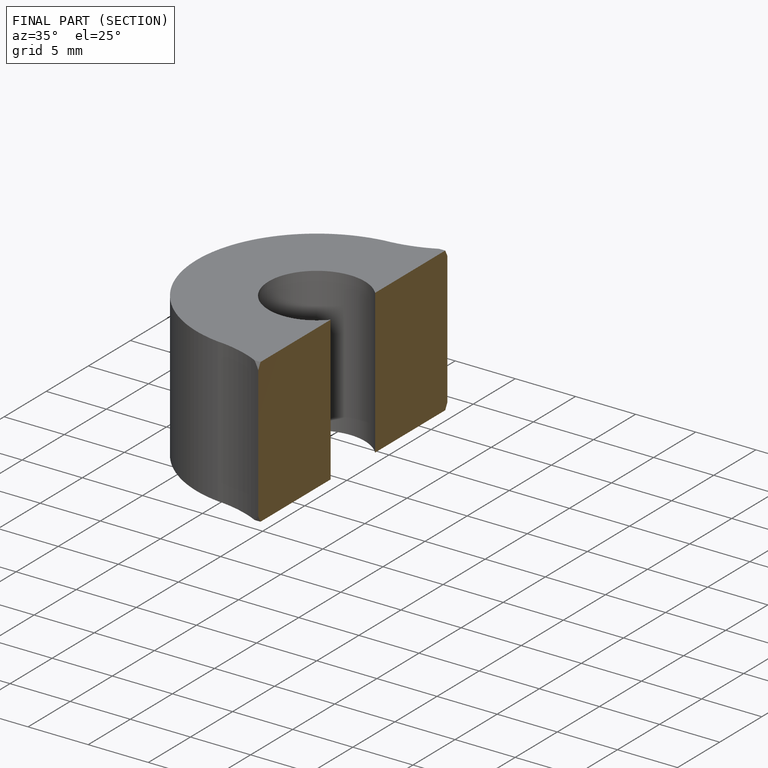
[diagram: finished part — half-section view (interior)]
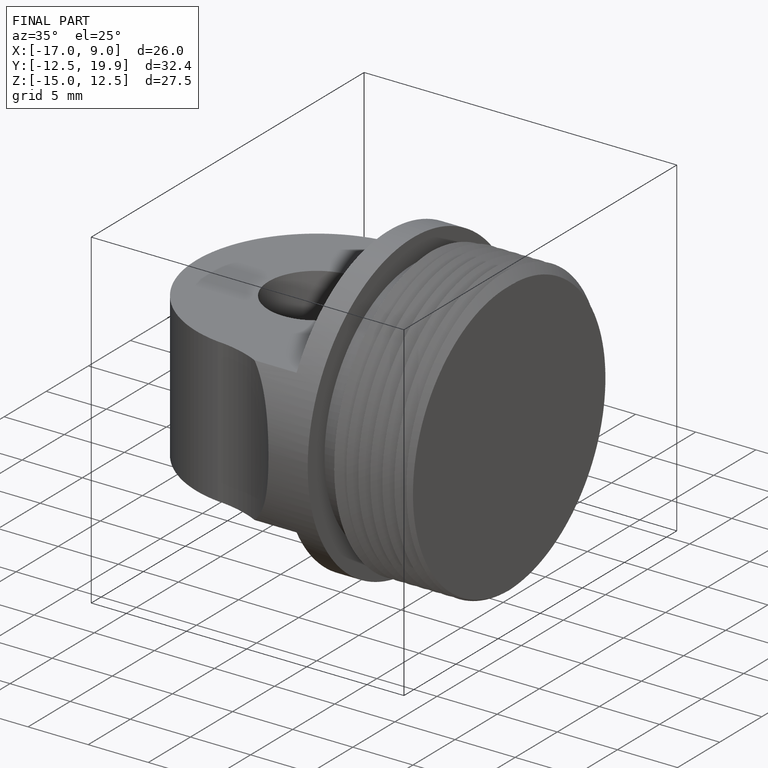
[diagram: finished part — iso view with bounding-box wireframe]
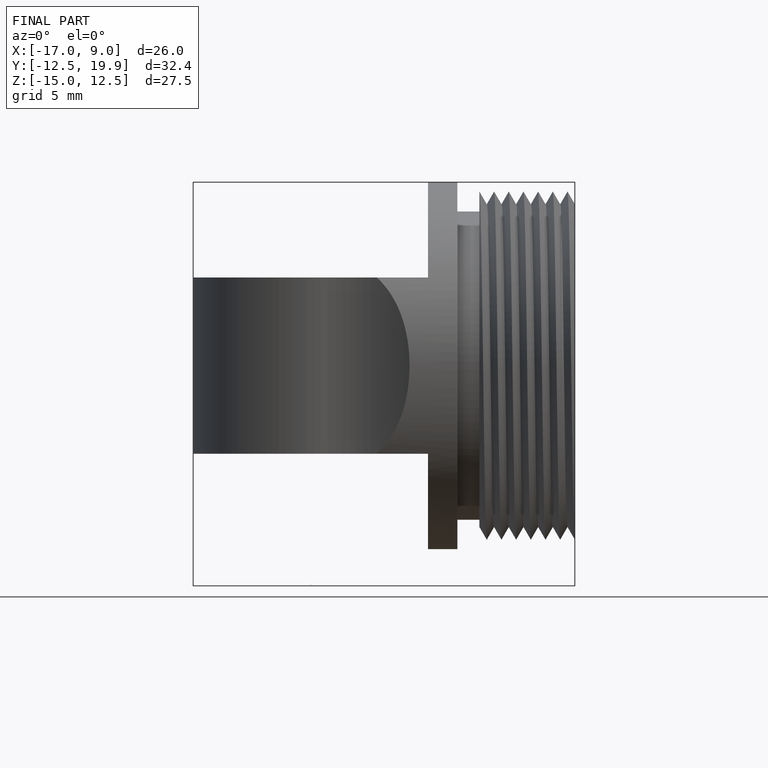
[diagram: finished part — front view with bounding-box wireframe]
